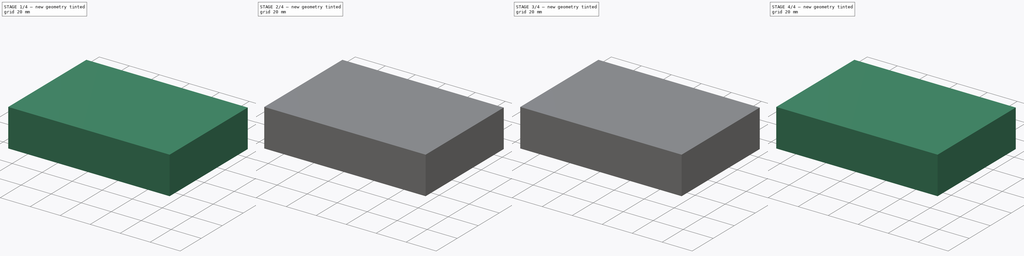
[diagram: build sequence overview — one tinted view per stage of 4, left to right]
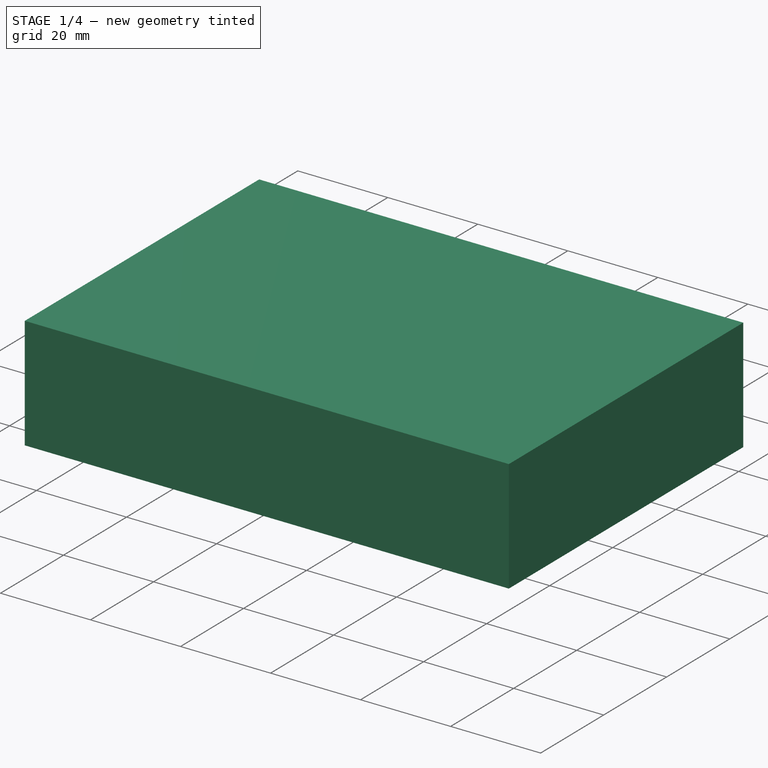
[diagram: stage 1 of 4 — iso view after this stage's code; geometry added in this stage tinted green]
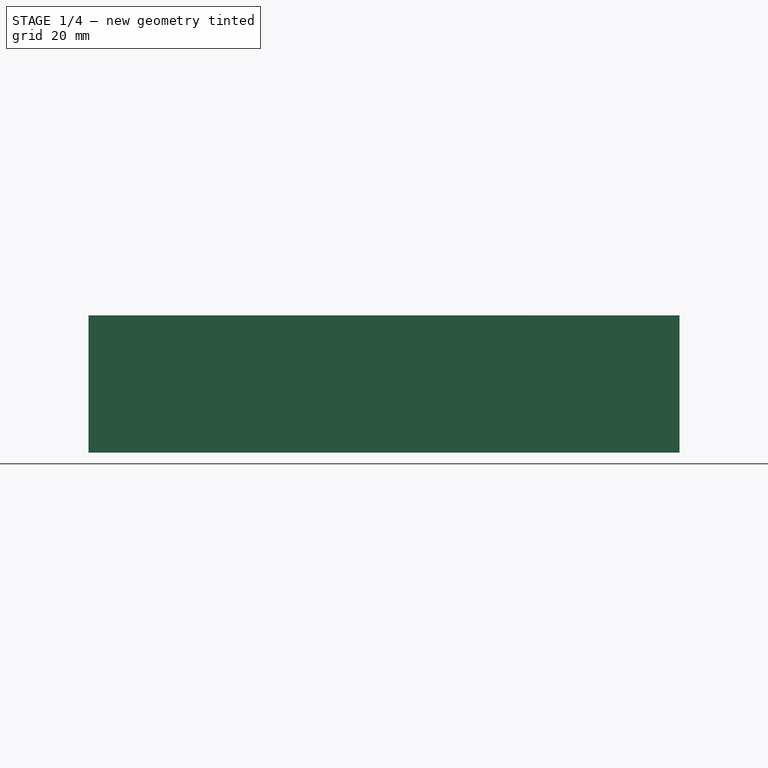
[diagram: stage 1 of 4 — front view after this stage's code; geometry added in this stage tinted green]
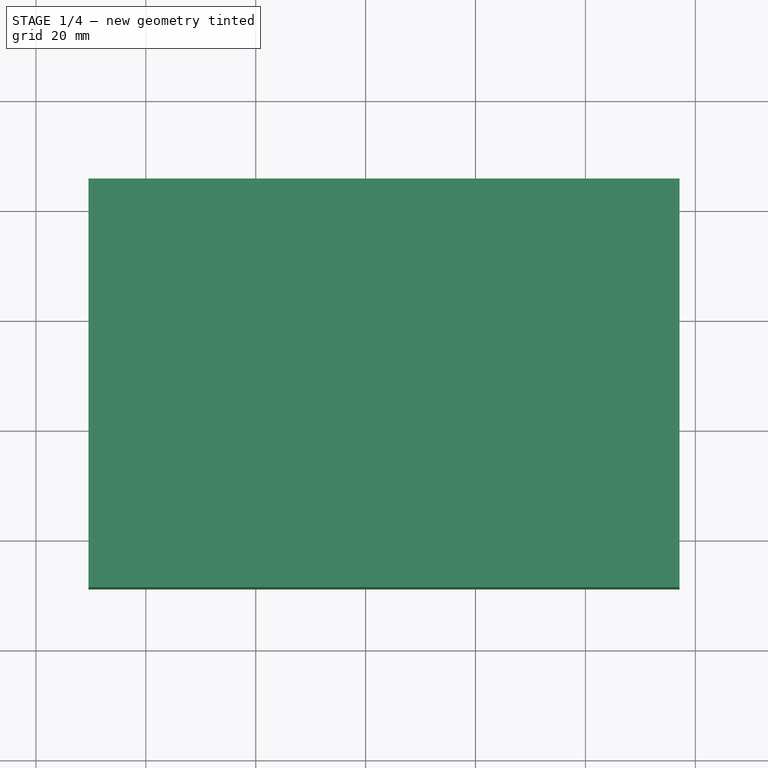
[diagram: stage 1 of 4 — top view after this stage's code; geometry added in this stage tinted green]
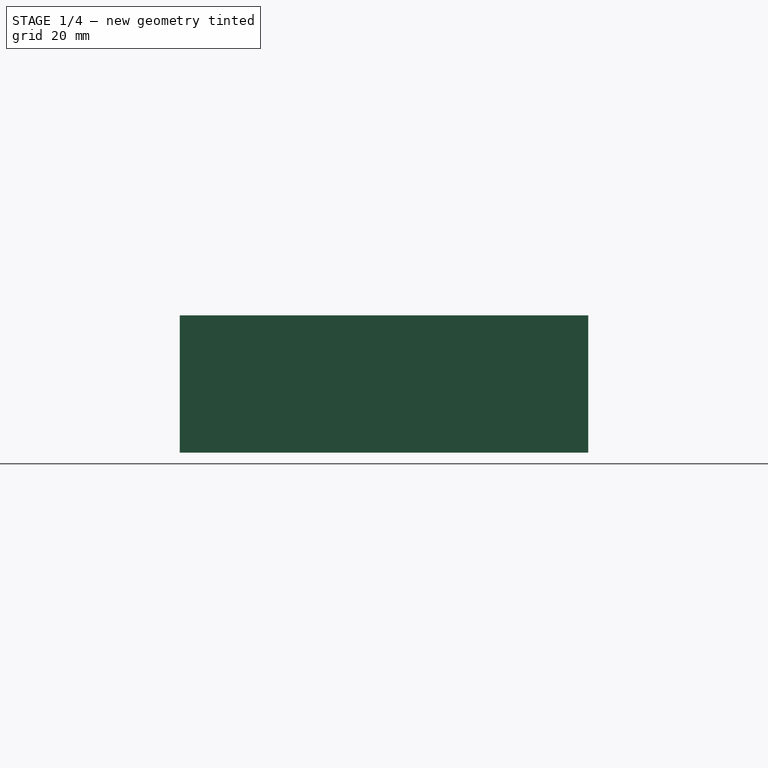
[diagram: stage 1 of 4 — right view after this stage's code; geometry added in this stage tinted green]
FCSTD DOCUMENT  (FreeCAD 0.20R29177 (Git))
Label: LowPassFilter
License: All rights reserved
LicenseURL: http://en.wikipedia.org/wiki/All_rights_reserved
objects: Part::Extrusion×14, Part::Feature×7, Sketcher::SketchObject×6
note: 27 computed .brp shape members not serialized (recipe doc carries the construction recipe); baked Part::Feature solids carry a one-line shape summary decoded from their .brp

FEATURE [Part::Extrusion] Extrude005  label="filter_7"
  Base = -> Face005
  Dir = (0,0,1)
  DirMode = 0
  FaceMakerClass = Part::FaceMakerBullseye
  LengthFwd = 0.035
  LengthRev = 0
  Solid = false
  Symmetric = false
FEATURE [Sketcher::SketchObject] Sketch005
  FullyConstrained = false
  Placement = pos=(0,0,1) rot=(0,0,1;0rad)
  sketch-geometry (4):
    g0: LineSegment StartX=-2.71596 StartY=2.73497 StartZ=0 EndX=53.0024 EndY=2.73497 EndZ=0
    g1: LineSegment StartX=53.0024 StartY=2.73497 StartZ=0 EndX=53.0024 EndY=-22.3551 EndZ=0
    g2: LineSegment StartX=53.0024 StartY=-22.3551 StartZ=0 EndX=-2.71596 EndY=-22.3551 EndZ=0
    g3: LineSegment StartX=-2.71596 StartY=-22.3551 StartZ=0 EndX=-2.71596 EndY=2.73497 EndZ=0
  constraints (8):
    c: Coincident(g0,g1)
    c: Coincident(g1,g2)
    c: Coincident(g2,g3)
    c: Coincident(g3,g0)
    c: Horizontal(g0)
    c: Horizontal(g2)
    c: Vertical(g1)
    c: Vertical(g3)
FEATURE [Part::Extrusion] Extrude013  label="electric field port"
  Base = -> Sketch005
  Dir = (0,0,1)
  DirMode = 2
  FaceMakerClass = Part::FaceMakerBullseye
  LengthFwd = 0.035
  LengthRev = 0
  Solid = true
  Symmetric = false
FEATURE [Sketcher::SketchObject] Sketch006  label="modelbox sketch"
  FullyConstrained = false
  sketch-geometry (4):
    g0: LineSegment StartX=-7.71513 StartY=8.09974 StartZ=0 EndX=59.0592 EndY=8.09974 EndZ=0
    g1: LineSegment StartX=59.0592 StartY=8.09974 StartZ=0 EndX=59.0592 EndY=-28.6196 EndZ=0
    g2: LineSegment StartX=59.0592 StartY=-28.6196 StartZ=0 EndX=-7.71513 EndY=-28.6196 EndZ=0
    g3: LineSegment StartX=-7.71513 StartY=-28.6196 StartZ=0 EndX=-7.71513 EndY=8.09974 EndZ=0
  constraints (8):
    c: Coincident(g0,g1)
    c: Coincident(g1,g2)
    c: Coincident(g2,g3)
    c: Coincident(g3,g0)
    c: Horizontal(g0)
    c: Horizontal(g2)
    c: Vertical(g1)
    c: Vertical(g3)
FEATURE [Part::Extrusion] Extrude014  label="modelbox"
  Base = -> Sketch006
  Dir = (0,0,1)
  DirMode = 2
  FaceMakerClass = Part::FaceMakerBullseye
  LengthFwd = 5
  LengthRev = 0
  Solid = true
  Symmetric = true
FEATURE [Sketcher::SketchObject] Sketch007  label="airbox sketch"
  FullyConstrained = false
  sketch-geometry (4):
    g0: LineSegment StartX=77.1157 StartY=25.5282 StartZ=0 EndX=-30.4288 EndY=25.5282 EndZ=0
    g1: LineSegment StartX=-30.4288 StartY=25.5282 StartZ=0 EndX=-30.4288 EndY=-48.8252 EndZ=0
    g2: LineSegment StartX=-30.4288 StartY=-48.8252 StartZ=0 EndX=77.1157 EndY=-48.8252 EndZ=0
    g3: LineSegment StartX=77.1157 StartY=-48.8252 StartZ=0 EndX=77.1157 EndY=25.5282 EndZ=0
  constraints (8):
    c: Coincident(g0,g1)
    c: Coincident(g1,g2)
    c: Coincident(g2,g3)
    c: Coincident(g3,g0)
    c: Horizontal(g0)
    c: Horizontal(g2)
    c: Vertical(g1)
    c: Vertical(g3)
FEATURE [Part::Extrusion] Extrude015  label="air box"
  Base = -> Sketch007
  Dir = (0,0,1)
  DirMode = 2
  FaceMakerClass = Part::FaceMakerBullseye
  LengthFwd = 25
  LengthRev = 0
  Solid = true
  Symmetric = true
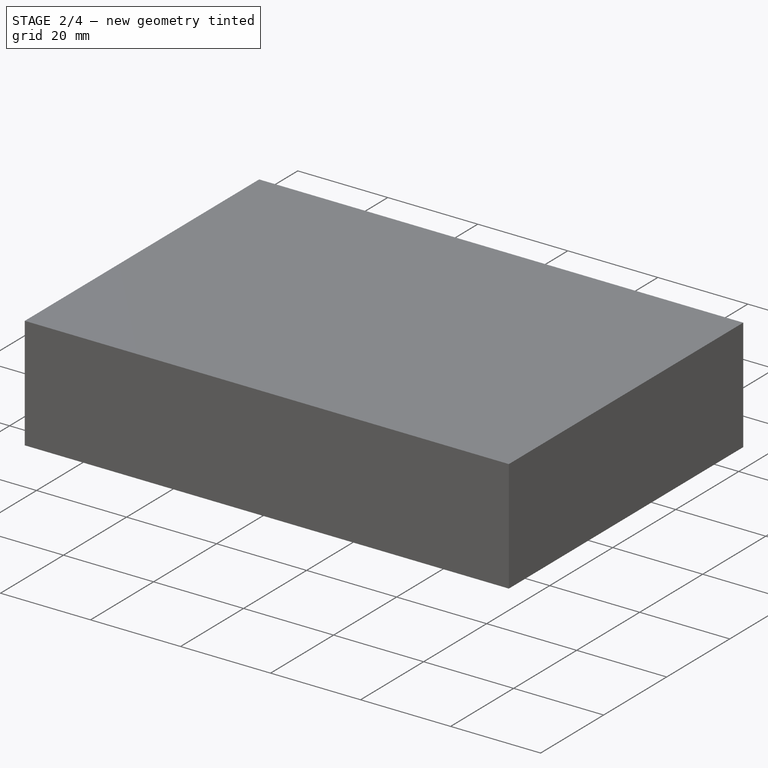
[diagram: stage 2 of 4 — iso view after this stage's code; geometry added in this stage tinted green]
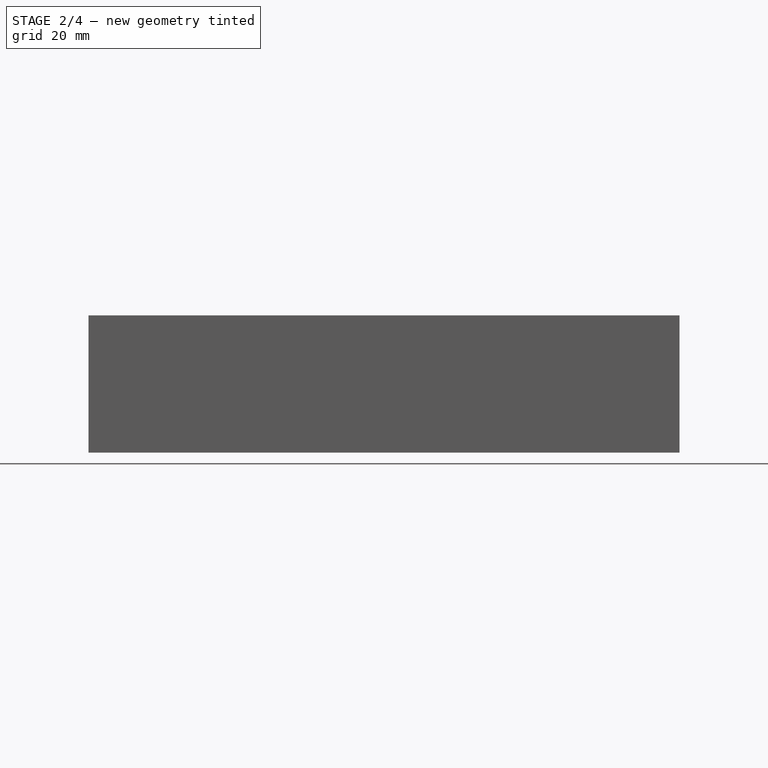
[diagram: stage 2 of 4 — front view after this stage's code; geometry added in this stage tinted green]
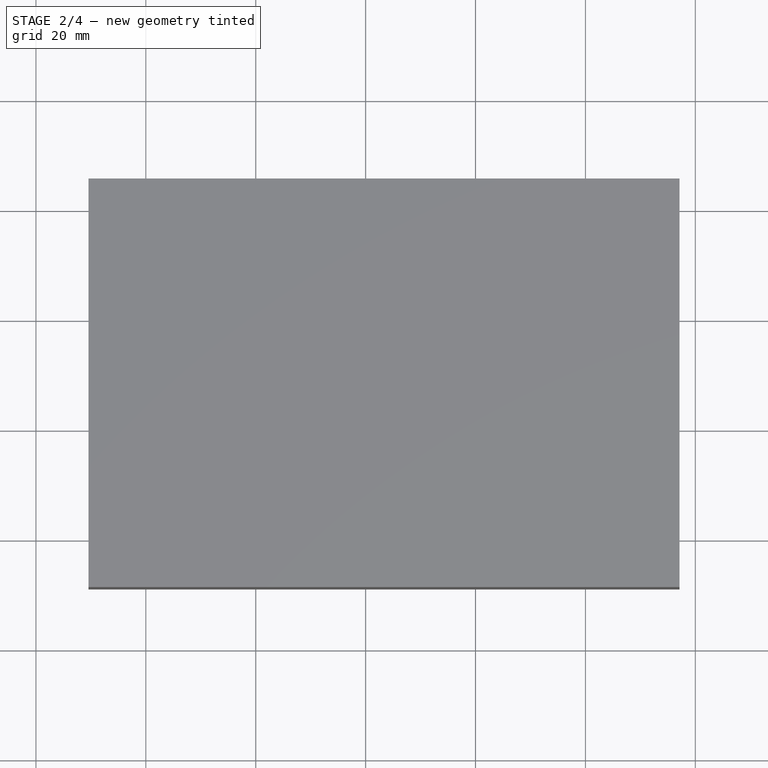
[diagram: stage 2 of 4 — top view after this stage's code; geometry added in this stage tinted green]
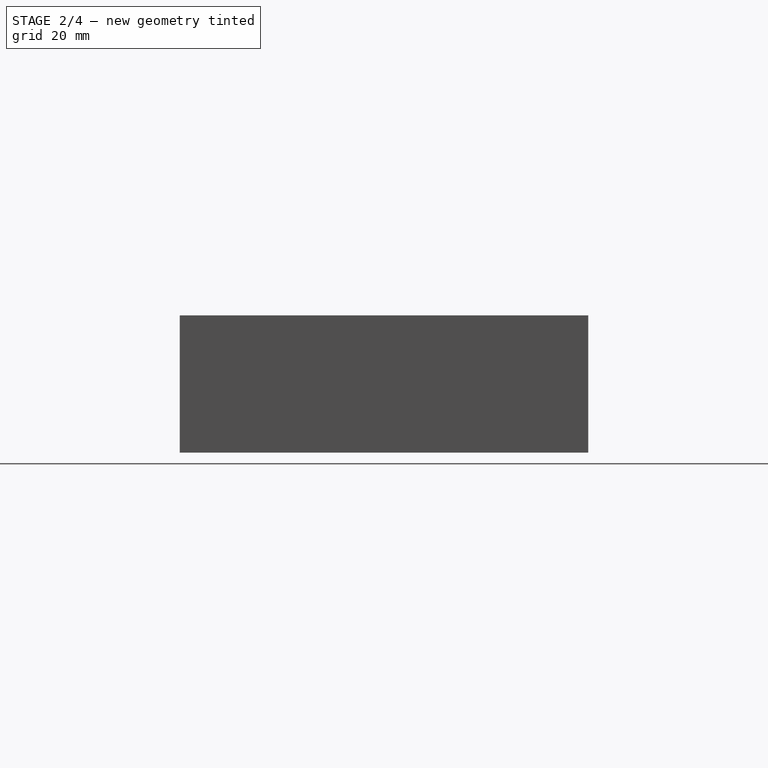
[diagram: stage 2 of 4 — right view after this stage's code; geometry added in this stage tinted green]
FEATURE [Part::Feature] Face
  shape: bbox 4.498 x 0.4978 x 2.841e-07 mm, 1 faces, 0 solids (baked)
FEATURE [Part::Feature] Face001
  shape: bbox 1.501 x 20.5 x 6.618e-07 mm, 1 faces, 0 solids (baked)
FEATURE [Part::Feature] Face002
  shape: bbox 18 x 0.4978 x 9.363e-07 mm, 1 faces, 0 solids (baked)
FEATURE [Part::Feature] Face003
  shape: bbox 2.502 x 20.5 x 6.623e-07 mm, 1 faces, 0 solids (baked)
FEATURE [Part::Feature] Face004
  shape: bbox 18 x 0.4978 x 9.363e-07 mm, 1 faces, 0 solids (baked)
FEATURE [Part::Feature] Face005
  shape: bbox 4.498 x 0.4978 x 2e-07 mm, 1 faces, 0 solids (baked)
FEATURE [Part::Feature] Face006
  shape: bbox 1.501 x 20.5 x 6.618e-07 mm, 1 faces, 0 solids (baked)
FEATURE [Part::Extrusion] Extrude  label="filter_1"
  Base = -> Face
  Dir = (0,0,1)
  DirMode = 0
  FaceMakerClass = Part::FaceMakerBullseye
  LengthFwd = 0.035
  LengthRev = 0
  Solid = false
  Symmetric = false
FEATURE [Part::Extrusion] Extrude009  label="gnd"
  Base = -> Sketch
  Dir = (0,0,1)
  DirMode = 2
  FaceMakerClass = Part::FaceMakerBullseye
  LengthFwd = 0.035
  LengthRev = 0
  Placement = pos=(0,0,-1.535) rot=(0,0,1;0rad)
  Solid = true
  Symmetric = false
FEATURE [Sketcher::SketchObject] Sketch002
  FullyConstrained = false
  MapMode = 45
  Placement = pos=(48.2486,-10.2489,0.035) rot=(0,0,1;1.5708rad)
  Support = -> [Extrude005]
  sketch-geometry (4):
    g0: LineSegment StartX=-0.16472 StartY=-2.19853 StartZ=0 EndX=0.216075 EndY=-2.19853 EndZ=0
    g1: LineSegment StartX=0.216075 StartY=-2.19853 StartZ=0 EndX=0.216075 EndY=-2.03477 EndZ=0
    g2: LineSegment StartX=0.216075 StartY=-2.03477 StartZ=0 EndX=-0.16472 EndY=-2.03477 EndZ=0
    g3: LineSegment StartX=-0.16472 StartY=-2.03477 StartZ=0 EndX=-0.16472 EndY=-2.19853 EndZ=0
  constraints (8):
    c: Coincident(g0,g1)
    c: Coincident(g1,g2)
    c: Coincident(g2,g3)
    c: Coincident(g3,g0)
    c: Horizontal(g0)
    c: Horizontal(g2)
    c: Vertical(g1)
    c: Vertical(g3)
FEATURE [Part::Extrusion] Extrude010  label="portOut"
  Base = -> Sketch002
  Dir = (0,0,1)
  DirMode = 2
  FaceMakerClass = Part::FaceMakerBullseye
  LengthFwd = 1.57
  LengthRev = 0
  Reversed = true
  Solid = true
  Symmetric = false
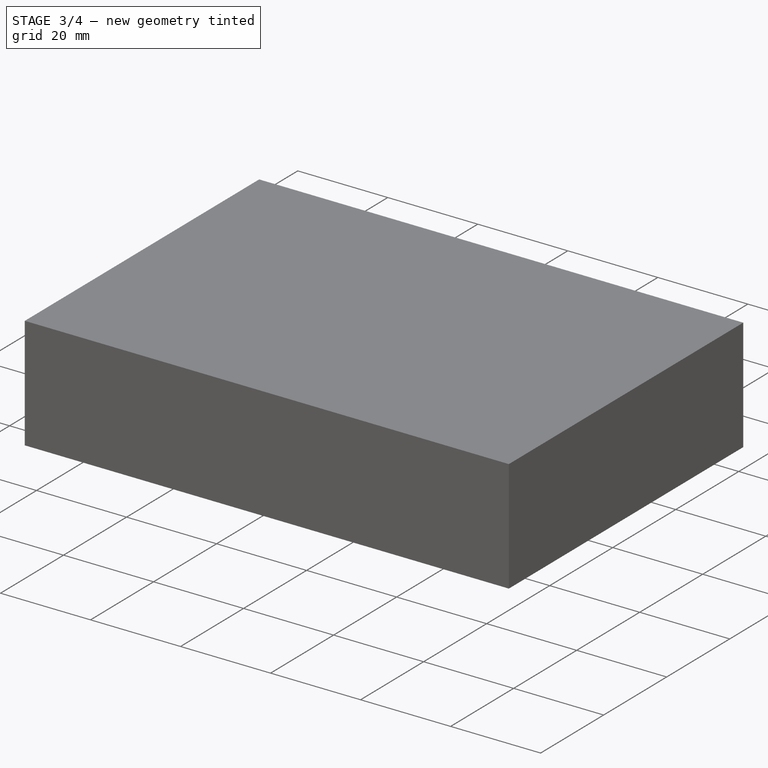
[diagram: stage 3 of 4 — iso view after this stage's code; geometry added in this stage tinted green]
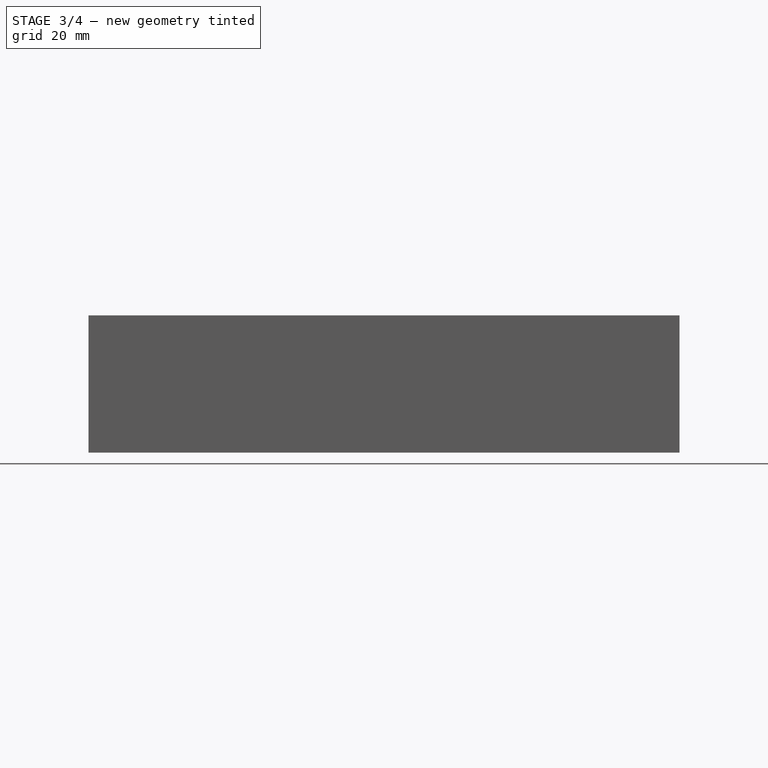
[diagram: stage 3 of 4 — front view after this stage's code; geometry added in this stage tinted green]
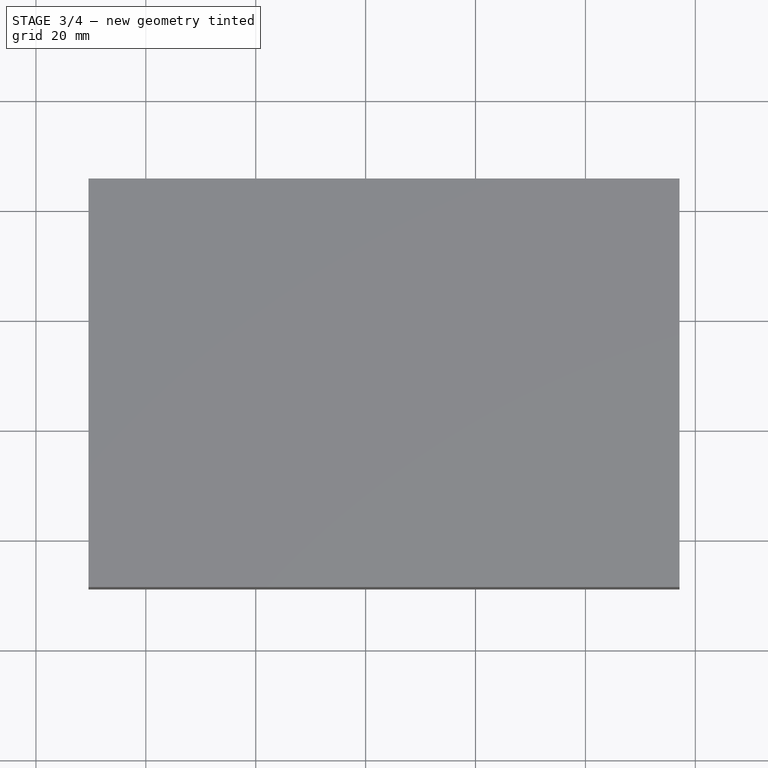
[diagram: stage 3 of 4 — top view after this stage's code; geometry added in this stage tinted green]
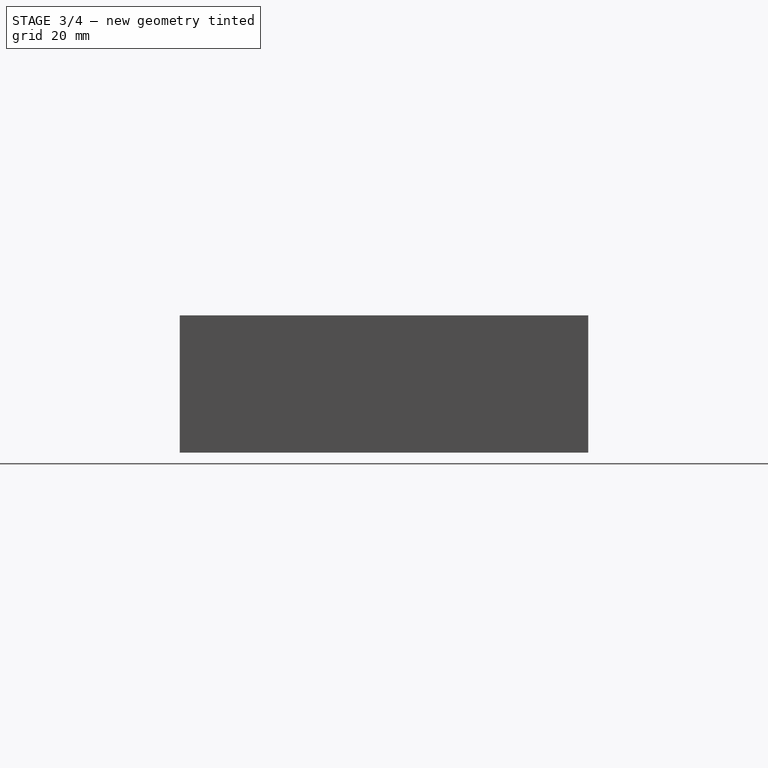
[diagram: stage 3 of 4 — right view after this stage's code; geometry added in this stage tinted green]
FEATURE [Part::Extrusion] Extrude006  label="filter_6"
  Base = -> Face006
  Dir = (0,0,1)
  DirMode = 0
  FaceMakerClass = Part::FaceMakerBullseye
  LengthFwd = 0.035
  LengthRev = 0
  Solid = false
  Symmetric = false
FEATURE [Sketcher::SketchObject] Sketch
  FullyConstrained = false
  sketch-geometry (4):
    g0: LineSegment StartX=-6.10721 StartY=6.28164 StartZ=0 EndX=57.03 EndY=6.28164 EndZ=0
    g1: LineSegment StartX=57.03 StartY=6.28164 StartZ=0 EndX=57.03 EndY=-26.558 EndZ=0
    g2: LineSegment StartX=57.03 StartY=-26.558 StartZ=0 EndX=-6.10721 EndY=-26.558 EndZ=0
    g3: LineSegment StartX=-6.10721 StartY=-26.558 StartZ=0 EndX=-6.10721 EndY=6.28164 EndZ=0
  constraints (8):
    c: Coincident(g0,g1)
    c: Coincident(g1,g2)
    c: Coincident(g2,g3)
    c: Coincident(g3,g0)
    c: Horizontal(g0)
    c: Horizontal(g2)
    c: Vertical(g1)
    c: Vertical(g3)
FEATURE [Part::Extrusion] Extrude007  label="substrate"
  Base = -> Sketch
  Dir = (0,0,1)
  DirMode = 2
  FaceMakerClass = Part::FaceMakerBullseye
  LengthFwd = 1.5
  LengthRev = 0
  Reversed = true
  Solid = true
  Symmetric = false
FEATURE [Sketcher::SketchObject] Sketch001
  FullyConstrained = false
  MapMode = 45
  Placement = pos=(2.24917,-10.2489,0.035) rot=(0,0,1;1.5708rad)
  Support = -> [Extrude]
  sketch-geometry (4):
    g0: LineSegment StartX=0.221307 StartY=2.22647 StartZ=0 EndX=-0.202833 EndY=2.22647 EndZ=0
    g1: LineSegment StartX=-0.202833 StartY=2.22647 StartZ=0 EndX=-0.202833 EndY=2.1307 EndZ=0
    g2: LineSegment StartX=-0.202833 StartY=2.1307 StartZ=0 EndX=0.221307 EndY=2.1307 EndZ=0
    g3: LineSegment StartX=0.221307 StartY=2.1307 StartZ=0 EndX=0.221307 EndY=2.22647 EndZ=0
  constraints (8):
    c: Coincident(g0,g1)
    c: Coincident(g1,g2)
    c: Coincident(g2,g3)
    c: Coincident(g3,g0)
    c: Horizontal(g0)
    c: Horizontal(g2)
    c: Vertical(g1)
    c: Vertical(g3)
FEATURE [Part::Extrusion] Extrude008  label="portIn"
  Base = -> Sketch001
  Dir = (0,0,1)
  DirMode = 2
  FaceMakerClass = Part::FaceMakerBullseye
  LengthFwd = 1.57
  LengthRev = 0
  Reversed = true
  Solid = true
  Symmetric = false
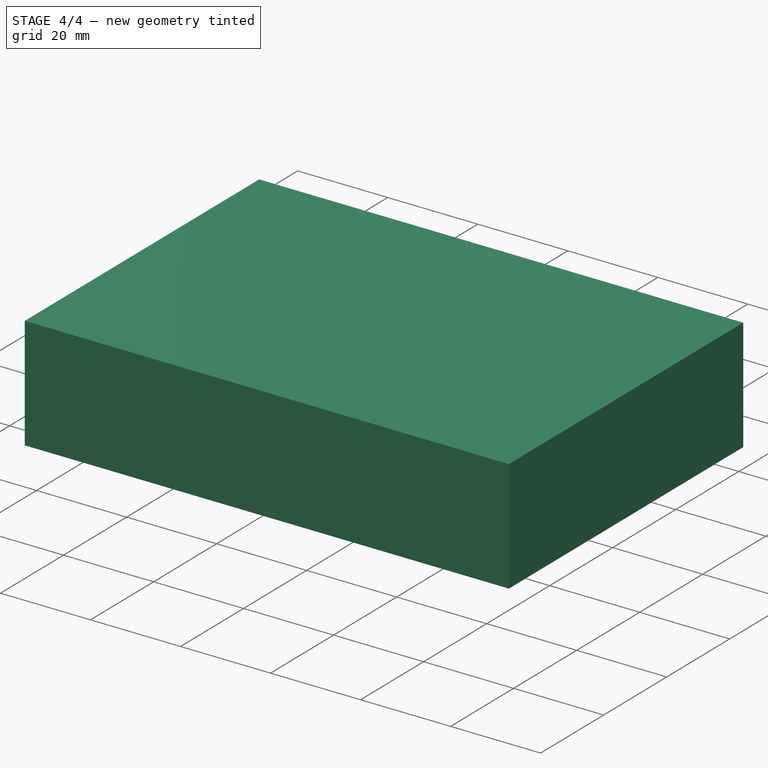
[diagram: stage 4 of 4 — iso view after this stage's code; geometry added in this stage tinted green]
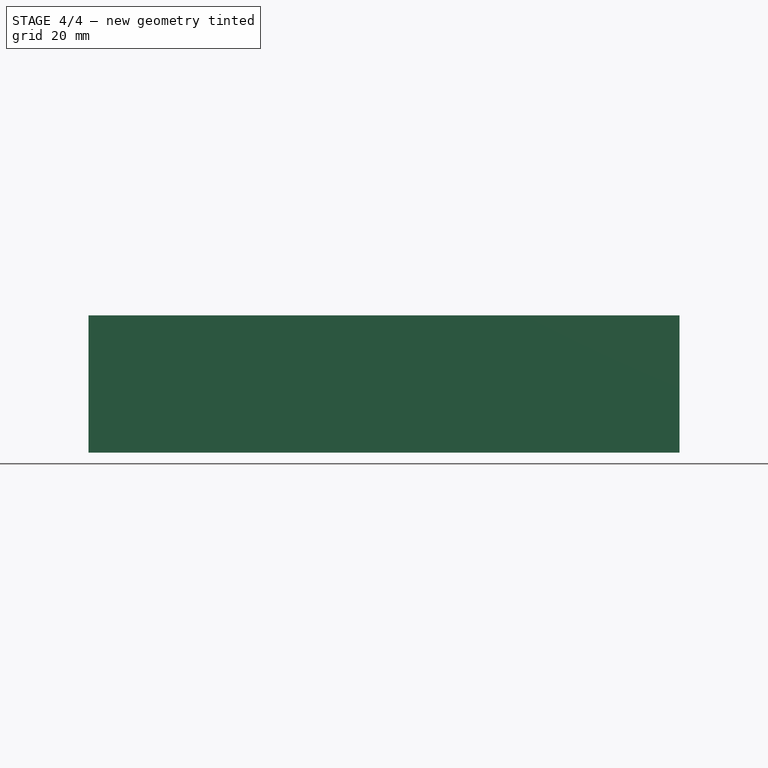
[diagram: stage 4 of 4 — front view after this stage's code; geometry added in this stage tinted green]
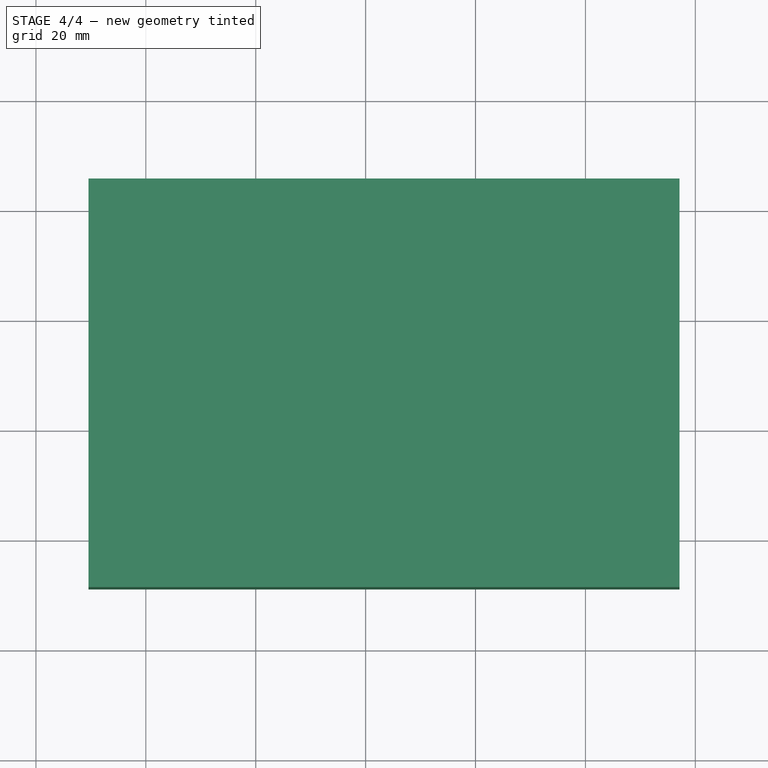
[diagram: stage 4 of 4 — top view after this stage's code; geometry added in this stage tinted green]
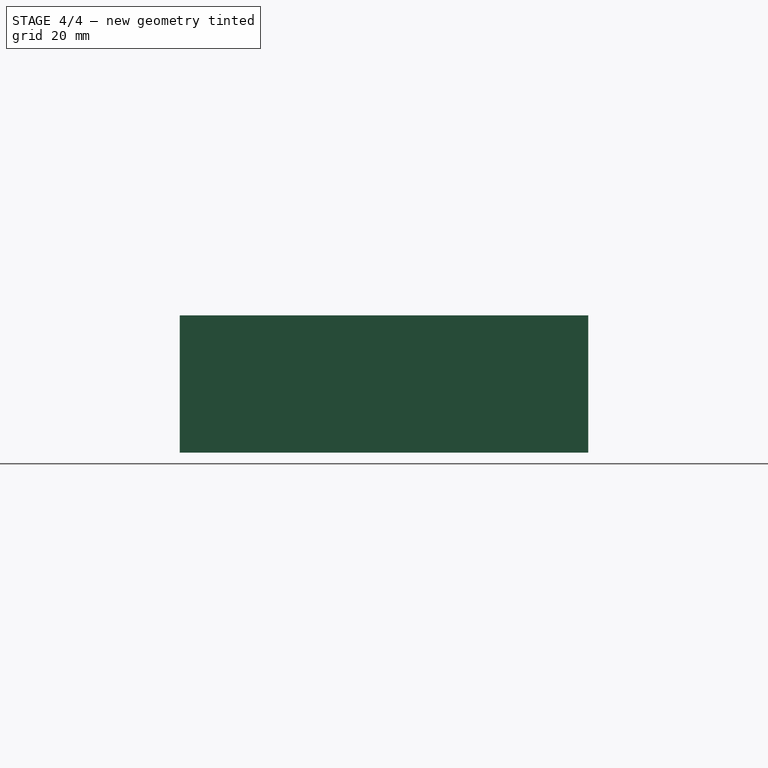
[diagram: stage 4 of 4 — right view after this stage's code; geometry added in this stage tinted green]
FEATURE [Part::Extrusion] Extrude001  label="filter_2"
  Base = -> Face001
  Dir = (0,0,1)
  DirMode = 0
  FaceMakerClass = Part::FaceMakerBullseye
  LengthFwd = 0.035
  LengthRev = 0
  Solid = false
  Symmetric = false
FEATURE [Part::Extrusion] Extrude002  label="filter_3"
  Base = -> Face002
  Dir = (0,0,1)
  DirMode = 0
  FaceMakerClass = Part::FaceMakerBullseye
  LengthFwd = 0.035
  LengthRev = 0
  Solid = false
  Symmetric = false
FEATURE [Part::Extrusion] Extrude003  label="filter_4"
  Base = -> Face003
  Dir = (0,0,1)
  DirMode = 0
  FaceMakerClass = Part::FaceMakerBullseye
  LengthFwd = 0.035
  LengthRev = 0
  Solid = false
  Symmetric = false
FEATURE [Part::Extrusion] Extrude004  label="filter_5"
  Base = -> Face004
  Dir = (0,0,1)
  DirMode = 0
  FaceMakerClass = Part::FaceMakerBullseye
  LengthFwd = 0.035
  LengthRev = 0
  Solid = false
  Symmetric = false
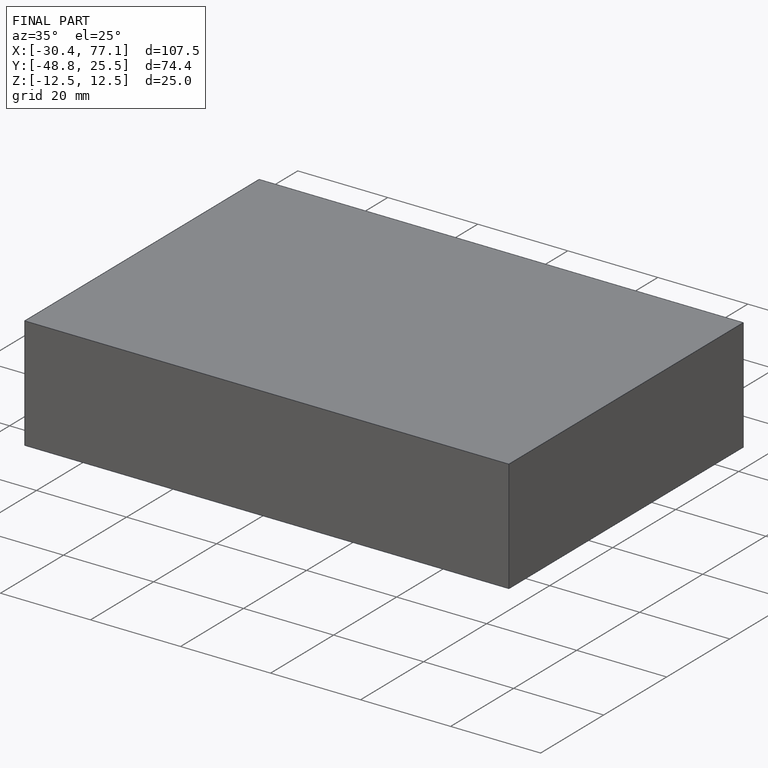
[diagram: finished part — iso view with bounding-box wireframe]
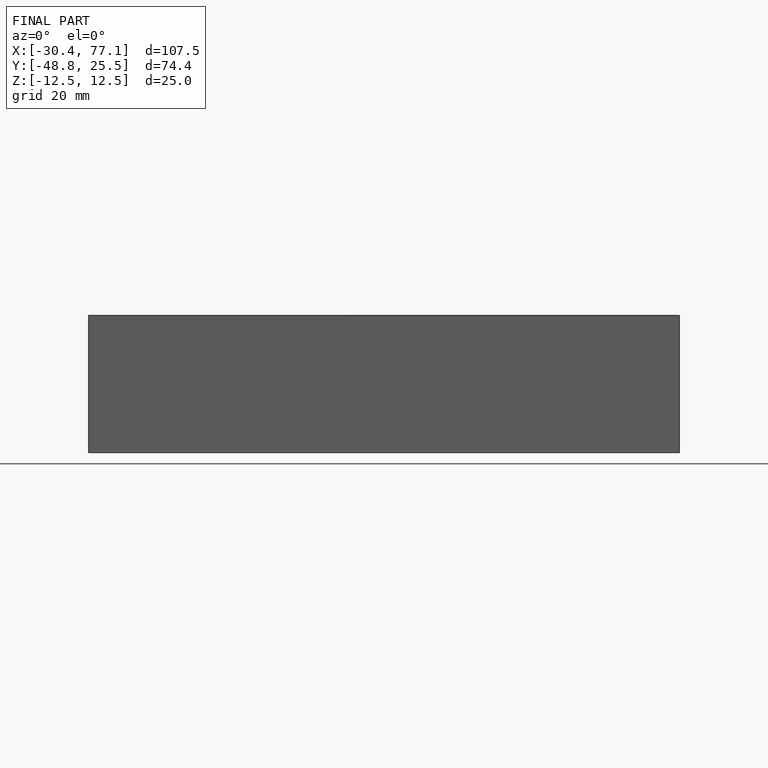
[diagram: finished part — front view with bounding-box wireframe]
